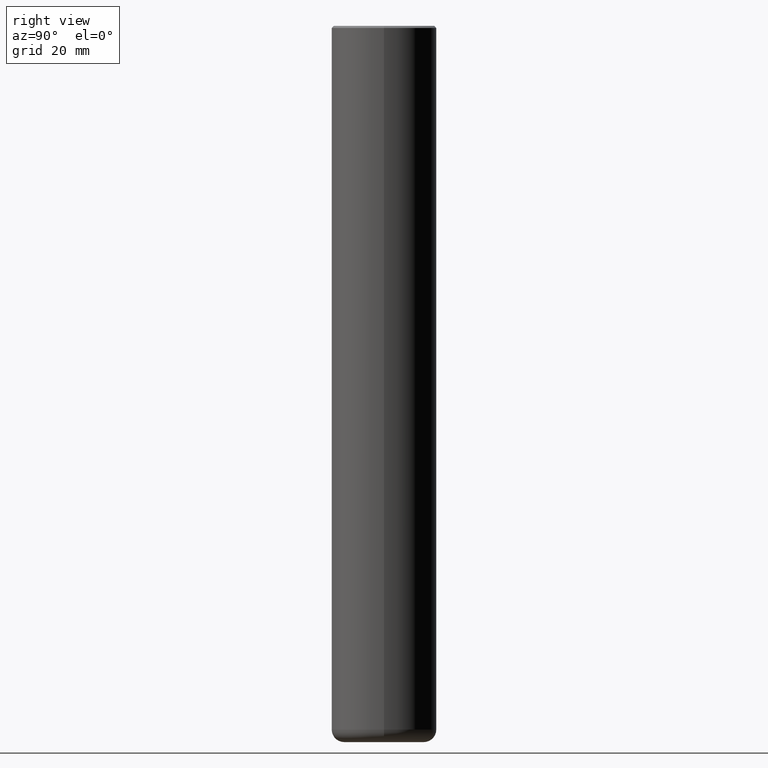
[diagram: clean part render]
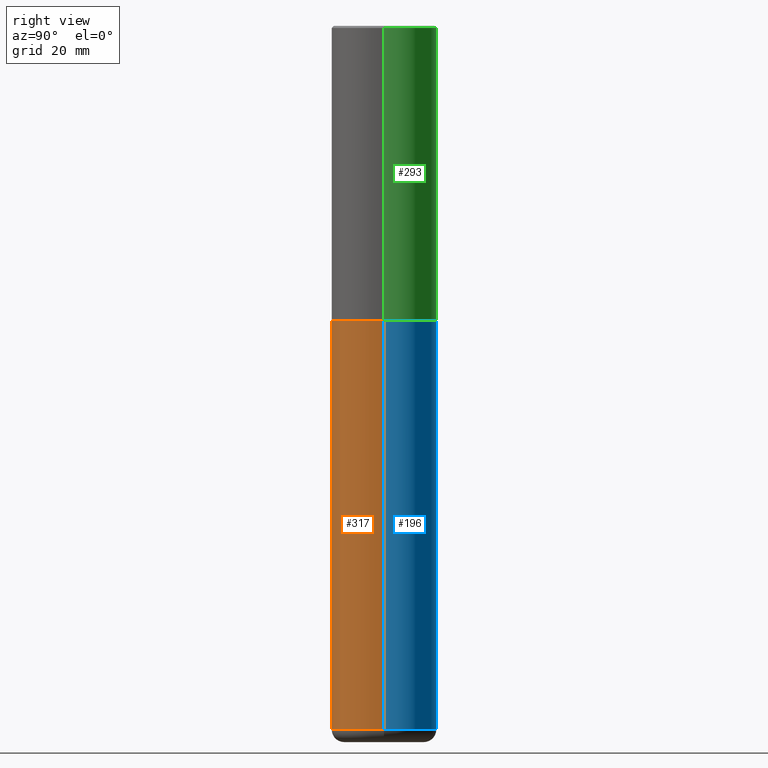
[diagram: same view with three faces highlighted in distinct colors, each labeled with its STEP entity id]
A machine part, right view with three faces highlighted in distinct colors.
Their STEP definitions:

[orange] entity #317 — the highlighted cylindrical surface (partial cylindrical patch) has radius 12.5006 mm, axis along (-0, 0, 1).
#3 = CARTESIAN_POINT ( 'NONE',  ( -0.4921499999999996988, -1.945885543258258788E-14, -6.574799999999999756 ) ) ;
#7 = DIRECTION ( 'NONE',  ( -2.445468806185136877E-29, 3.491481338843145188E-15, 1.000000000000000000 ) ) ;
#9 = CARTESIAN_POINT ( 'NONE',  ( 0.000000000000000000, 0.000000000000000000, 0.000000000000000000 ) ) ;
#10 = VECTOR ( 'NONE', #7, 39.37007874015748143 ) ;
#14 = DIRECTION ( 'NONE',  ( 1.000000000000000000, -6.982962677686265922E-15, 0.000000000000000000 ) ) ;
#17 = DIRECTION ( 'NONE',  ( 1.000000000000000000, -6.982962677686265922E-15, 4.876176775795935793E-29 ) ) ;
#19 = AXIS2_PLACEMENT_3D ( 'NONE', #9, #247, #17 ) ;
#22 = ORIENTED_EDGE ( 'NONE', *, *, #133, .F. ) ;
#35 = VECTOR ( 'NONE', #369, 39.37007874015748143 ) ;
#55 = VERTEX_POINT ( 'NONE', #197 ) ;
#58 = AXIS2_PLACEMENT_3D ( 'NONE', #78, #138, #14 ) ;
#78 = CARTESIAN_POINT ( 'NONE',  ( 6.739467482965618232E-29, -9.622173421717824390E-15, -2.755900000000000016 ) ) ;
#113 = CARTESIAN_POINT ( 'NONE',  ( -0.4921499999999999764, -1.279204639012853613E-14, -2.755900000000000016 ) ) ;
#126 = VERTEX_POINT ( 'NONE', #3 ) ;
#132 = LINE ( 'NONE', #392, #10 ) ;
#133 = EDGE_CURVE ( 'NONE', #126, #261, #132, .T. ) ;
#134 = CARTESIAN_POINT ( 'NONE',  ( 0.4921499999999999764, -1.305883850354112017E-14, -2.755900000000000016 ) ) ;
#138 = DIRECTION ( 'NONE',  ( -2.445468806185136597E-29, 3.491481338843145583E-15, 1.000000000000000000 ) ) ;
#148 = CIRCLE ( 'NONE', #353, 0.4921500000000000319 ) ;
#155 = ORIENTED_EDGE ( 'NONE', *, *, #388, .T. ) ;
#157 = VERTEX_POINT ( 'NONE', #134 ) ;
#166 = DIRECTION ( 'NONE',  ( -2.445468806185136597E-29, 3.491481338843145583E-15, 1.000000000000000000 ) ) ;
#176 = FACE_OUTER_BOUND ( 'NONE', #414, .T. ) ;
#193 = EDGE_CURVE ( 'NONE', #126, #55, #148, .T. ) ;
#197 = CARTESIAN_POINT ( 'NONE',  ( 0.4921499999999996988, -2.639245658844920945E-14, -6.574799999999999756 ) ) ;
#199 = CARTESIAN_POINT ( 'NONE',  ( 1.607846830690603466E-28, -2.295579150662591525E-14, -6.574799999999999756 ) ) ;
#234 = CIRCLE ( 'NONE', #58, 0.4921499999999999764 ) ;
#241 = LINE ( 'NONE', #395, #35 ) ;
#247 = DIRECTION ( 'NONE',  ( -2.445468806185136597E-29, 3.491481338843145583E-15, 1.000000000000000000 ) ) ;
#260 = EDGE_CURVE ( 'NONE', #261, #157, #234, .T. ) ;
#261 = VERTEX_POINT ( 'NONE', #113 ) ;
#288 = ORIENTED_EDGE ( 'NONE', *, *, #193, .T. ) ;
#299 = DIRECTION ( 'NONE',  ( 1.000000000000000000, -6.982962677686265133E-15, 0.000000000000000000 ) ) ;
#317 = ADVANCED_FACE ( 'NONE', ( #176 ), #330, .T. ) ;
#330 = CYLINDRICAL_SURFACE ( 'NONE', #19, 0.4921499999999999764 ) ;
#353 = AXIS2_PLACEMENT_3D ( 'NONE', #199, #166, #299 ) ;
#369 = DIRECTION ( 'NONE',  ( -2.445468806185136877E-29, 3.491481338843145188E-15, 1.000000000000000000 ) ) ;
#377 = ORIENTED_EDGE ( 'NONE', *, *, #260, .F. ) ;
#388 = EDGE_CURVE ( 'NONE', #55, #157, #241, .T. ) ;
#392 = CARTESIAN_POINT ( 'NONE',  ( -0.4921499999999999764, 3.496936074043332897E-15, -2.420853904668951509E-29 ) ) ;
#395 = CARTESIAN_POINT ( 'NONE',  ( 0.4921499999999999764, -3.436665081823295777E-15, 2.399810400207969603E-29 ) ) ;
#414 = EDGE_LOOP ( 'NONE', ( #22, #288, #155, #377 ) ) ;

[blue] entity #196 — the highlighted cylindrical surface (partial cylindrical patch) has radius 12.5006 mm, axis along (-0, 0, 1).
#3 = CARTESIAN_POINT ( 'NONE',  ( -0.4921499999999996988, -1.945885543258258788E-14, -6.574799999999999756 ) ) ;
#7 = DIRECTION ( 'NONE',  ( -2.445468806185136877E-29, 3.491481338843145188E-15, 1.000000000000000000 ) ) ;
#10 = VECTOR ( 'NONE', #7, 39.37007874015748143 ) ;
#35 = VECTOR ( 'NONE', #369, 39.37007874015748143 ) ;
#42 = DIRECTION ( 'NONE',  ( 1.000000000000000000, -6.982962677686265922E-15, 4.876176775795935793E-29 ) ) ;
#53 = ORIENTED_EDGE ( 'NONE', *, *, #133, .T. ) ;
#55 = VERTEX_POINT ( 'NONE', #197 ) ;
#94 = ORIENTED_EDGE ( 'NONE', *, *, #388, .F. ) ;
#103 = FACE_OUTER_BOUND ( 'NONE', #118, .T. ) ;
#113 = CARTESIAN_POINT ( 'NONE',  ( -0.4921499999999999764, -1.279204639012853613E-14, -2.755900000000000016 ) ) ;
#118 = EDGE_LOOP ( 'NONE', ( #411, #53, #415, #94 ) ) ;
#126 = VERTEX_POINT ( 'NONE', #3 ) ;
#130 = DIRECTION ( 'NONE',  ( 1.000000000000000000, -6.982962677686265922E-15, 0.000000000000000000 ) ) ;
#132 = LINE ( 'NONE', #392, #10 ) ;
#133 = EDGE_CURVE ( 'NONE', #126, #261, #132, .T. ) ;
#134 = CARTESIAN_POINT ( 'NONE',  ( 0.4921499999999999764, -1.305883850354112017E-14, -2.755900000000000016 ) ) ;
#137 = EDGE_CURVE ( 'NONE', #157, #261, #257, .T. ) ;
#143 = DIRECTION ( 'NONE',  ( -2.445468806185136597E-29, 3.491481338843145583E-15, 1.000000000000000000 ) ) ;
#153 = AXIS2_PLACEMENT_3D ( 'NONE', #305, #278, #42 ) ;
#157 = VERTEX_POINT ( 'NONE', #134 ) ;
#173 = AXIS2_PLACEMENT_3D ( 'NONE', #391, #357, #130 ) ;
#194 = CIRCLE ( 'NONE', #373, 0.4921500000000000319 ) ;
#196 = ADVANCED_FACE ( 'NONE', ( #103 ), #274, .T. ) ;
#197 = CARTESIAN_POINT ( 'NONE',  ( 0.4921499999999996988, -2.639245658844920945E-14, -6.574799999999999756 ) ) ;
#241 = LINE ( 'NONE', #395, #35 ) ;
#257 = CIRCLE ( 'NONE', #173, 0.4921499999999999764 ) ;
#261 = VERTEX_POINT ( 'NONE', #113 ) ;
#274 = CYLINDRICAL_SURFACE ( 'NONE', #153, 0.4921499999999999764 ) ;
#275 = CARTESIAN_POINT ( 'NONE',  ( 1.607846830690603466E-28, -2.295579150662591525E-14, -6.574799999999999756 ) ) ;
#278 = DIRECTION ( 'NONE',  ( -2.445468806185136597E-29, 3.491481338843145583E-15, 1.000000000000000000 ) ) ;
#305 = CARTESIAN_POINT ( 'NONE',  ( 0.000000000000000000, 0.000000000000000000, 0.000000000000000000 ) ) ;
#335 = DIRECTION ( 'NONE',  ( 1.000000000000000000, -6.982962677686265133E-15, 0.000000000000000000 ) ) ;
#357 = DIRECTION ( 'NONE',  ( -2.445468806185136597E-29, 3.491481338843145583E-15, 1.000000000000000000 ) ) ;
#362 = EDGE_CURVE ( 'NONE', #55, #126, #194, .T. ) ;
#369 = DIRECTION ( 'NONE',  ( -2.445468806185136877E-29, 3.491481338843145188E-15, 1.000000000000000000 ) ) ;
#373 = AXIS2_PLACEMENT_3D ( 'NONE', #275, #143, #335 ) ;
#388 = EDGE_CURVE ( 'NONE', #55, #157, #241, .T. ) ;
#391 = CARTESIAN_POINT ( 'NONE',  ( 6.739467482965618232E-29, -9.622173421717824390E-15, -2.755900000000000016 ) ) ;
#392 = CARTESIAN_POINT ( 'NONE',  ( -0.4921499999999999764, 3.496936074043332897E-15, -2.420853904668951509E-29 ) ) ;
#395 = CARTESIAN_POINT ( 'NONE',  ( 0.4921499999999999764, -3.436665081823295777E-15, 2.399810400207969603E-29 ) ) ;
#411 = ORIENTED_EDGE ( 'NONE', *, *, #362, .T. ) ;
#415 = ORIENTED_EDGE ( 'NONE', *, *, #137, .F. ) ;

[green] entity #293 — the highlighted cylindrical surface (partial cylindrical patch) has radius 12.5006 mm, axis along (-0, 0, 1).
#1 = EDGE_CURVE ( 'NONE', #210, #290, #328, .T. ) ;
#5 = DIRECTION ( 'NONE',  ( -2.445468806185136877E-29, 3.491481338843145188E-15, 1.000000000000000000 ) ) ;
#6 = EDGE_CURVE ( 'NONE', #342, #290, #412, .T. ) ;
#18 = ORIENTED_EDGE ( 'NONE', *, *, #1, .T. ) ;
#20 = CARTESIAN_POINT ( 'NONE',  ( 0.000000000000000000, 0.000000000000000000, 0.000000000000000000 ) ) ;
#36 = CARTESIAN_POINT ( 'NONE',  ( 0.4921500000000003094, -1.305534702220228032E-14, -2.754900000000000126 ) ) ;
#39 = DIRECTION ( 'NONE',  ( -2.445468806185136877E-29, 3.491481338843145188E-15, 1.000000000000000000 ) ) ;
#40 = CARTESIAN_POINT ( 'NONE',  ( 0.4921500000000000319, -3.446223716380123138E-15, -0.02000000000000010797 ) ) ;
#49 = CARTESIAN_POINT ( 'NONE',  ( -0.4921500000000000319, 3.366835455046432873E-15, -0.02000000000000010797 ) ) ;
#64 = LINE ( 'NONE', #325, #248 ) ;
#65 = EDGE_CURVE ( 'NONE', #116, #342, #64, .T. ) ;
#95 = DIRECTION ( 'NONE',  ( -2.445468806185136597E-29, 3.491481338843145583E-15, 1.000000000000000000 ) ) ;
#98 = CIRCLE ( 'NONE', #272, 0.4921500000000003094 ) ;
#99 = CARTESIAN_POINT ( 'NONE',  ( 6.737022014159432629E-29, -9.618681940378981383E-15, -2.754900000000000126 ) ) ;
#116 = VERTEX_POINT ( 'NONE', #36 ) ;
#120 = CARTESIAN_POINT ( 'NONE',  ( -0.4921500000000003094, -1.347319709534586880E-15, -2.754900000000000126 ) ) ;
#125 = EDGE_CURVE ( 'NONE', #116, #210, #98, .T. ) ;
#149 = DIRECTION ( 'NONE',  ( 1.000000000000000000, -6.982962677686266711E-15, 4.876176775795935232E-29 ) ) ;
#182 = CYLINDRICAL_SURFACE ( 'NONE', #323, 0.4921500000000001984 ) ;
#186 = DIRECTION ( 'NONE',  ( -2.445468806185136597E-29, 3.491481338843145583E-15, 1.000000000000000000 ) ) ;
#195 = CARTESIAN_POINT ( 'NONE',  ( -0.4921500000000001984, 3.496936074043334475E-15, -2.420853904668952630E-29 ) ) ;
#210 = VERTEX_POINT ( 'NONE', #120 ) ;
#217 = AXIS2_PLACEMENT_3D ( 'NONE', #267, #297, #324 ) ;
#221 = ORIENTED_EDGE ( 'NONE', *, *, #65, .F. ) ;
#225 = ORIENTED_EDGE ( 'NONE', *, *, #125, .T. ) ;
#233 = VECTOR ( 'NONE', #39, 39.37007874015748143 ) ;
#248 = VECTOR ( 'NONE', #5, 39.37007874015748143 ) ;
#267 = CARTESIAN_POINT ( 'NONE',  ( 4.890937612370299433E-31, -6.982962677686328587E-17, -0.02000000000000010797 ) ) ;
#272 = AXIS2_PLACEMENT_3D ( 'NONE', #99, #95, #326 ) ;
#287 = ORIENTED_EDGE ( 'NONE', *, *, #6, .F. ) ;
#290 = VERTEX_POINT ( 'NONE', #49 ) ;
#293 = ADVANCED_FACE ( 'NONE', ( #337 ), #182, .T. ) ;
#297 = DIRECTION ( 'NONE',  ( -2.445468806185136597E-29, 3.491481338843145583E-15, 1.000000000000000000 ) ) ;
#310 = EDGE_LOOP ( 'NONE', ( #225, #18, #287, #221 ) ) ;
#323 = AXIS2_PLACEMENT_3D ( 'NONE', #20, #186, #149 ) ;
#324 = DIRECTION ( 'NONE',  ( 1.000000000000000000, -6.982962677686265922E-15, 0.000000000000000000 ) ) ;
#325 = CARTESIAN_POINT ( 'NONE',  ( 0.4921500000000001984, -3.436665081823297354E-15, 2.399810400207970443E-29 ) ) ;
#326 = DIRECTION ( 'NONE',  ( 1.000000000000000000, -6.982962677686265922E-15, 0.000000000000000000 ) ) ;
#328 = LINE ( 'NONE', #195, #233 ) ;
#337 = FACE_OUTER_BOUND ( 'NONE', #310, .T. ) ;
#342 = VERTEX_POINT ( 'NONE', #40 ) ;
#412 = CIRCLE ( 'NONE', #217, 0.4921500000000000319 ) ;